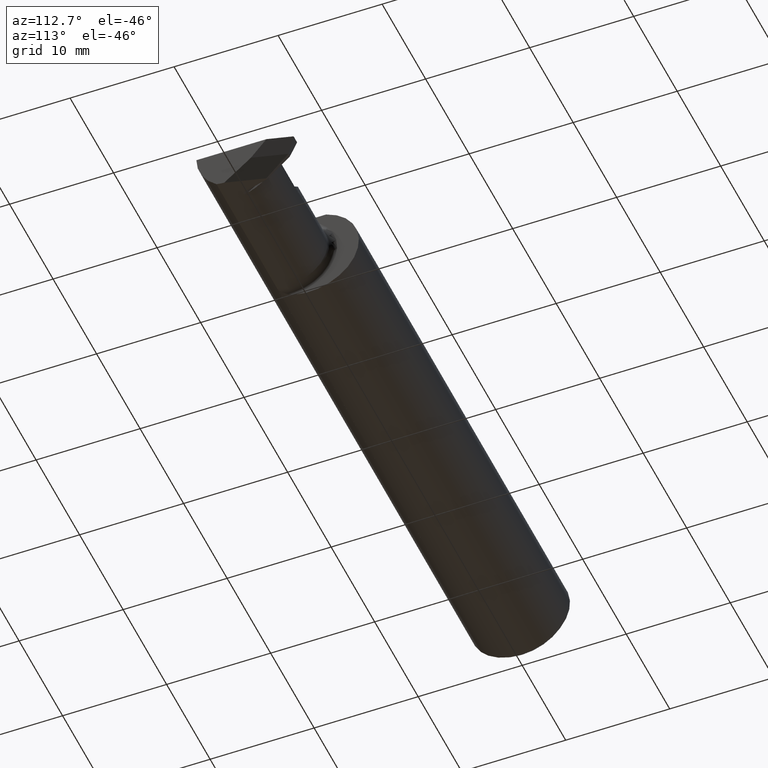
[diagram: clean part render]
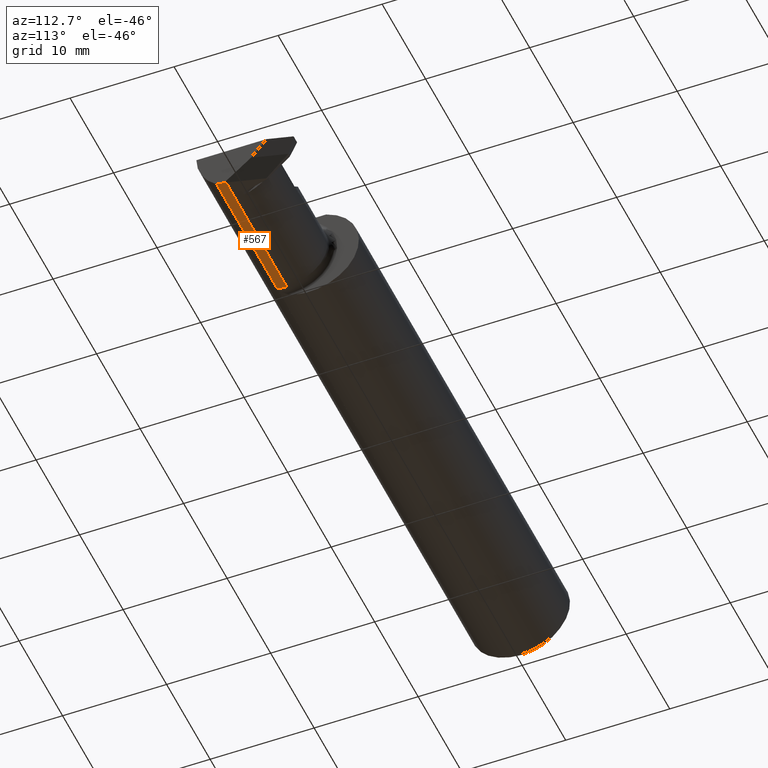
[diagram: same view with one face highlighted and labeled with its STEP entity id]
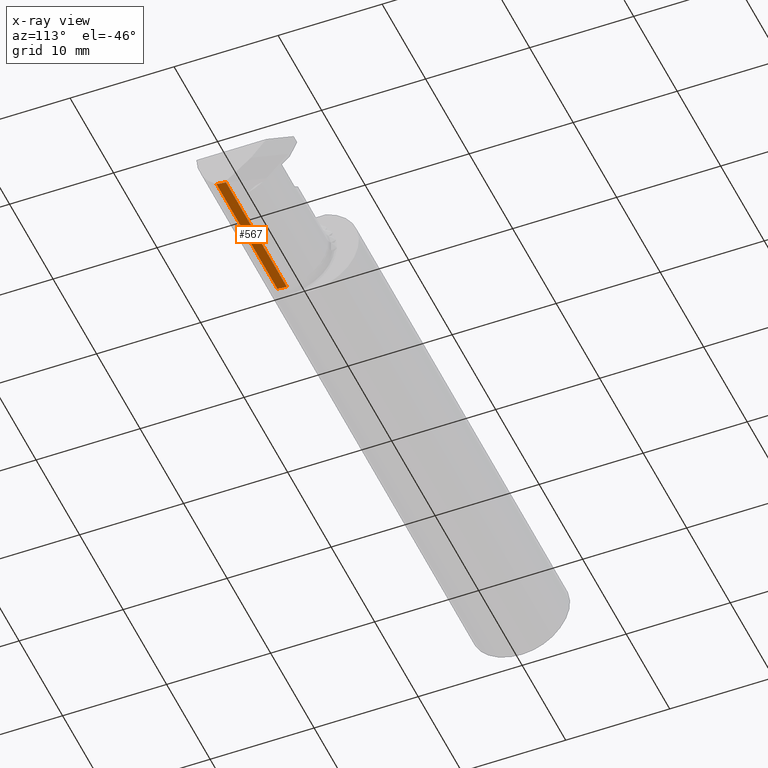
[diagram: x-ray of the same camera — body ghosted, the highlighted face saturated]
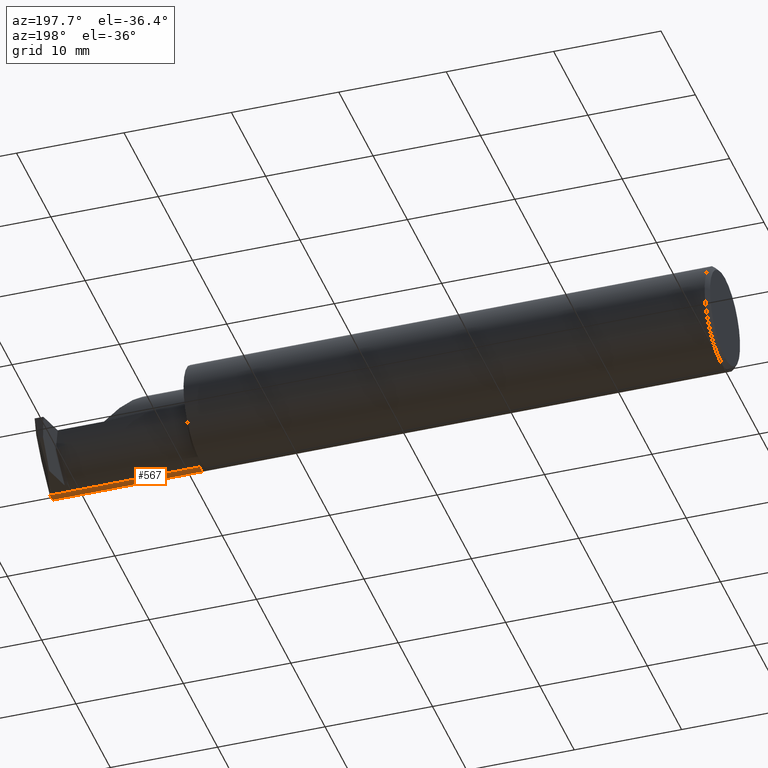
[diagram: same view with one face highlighted and labeled with its STEP entity id]
A machine part, auxiliary view. The second image highlights one B-rep face of the part: STEP entity #567.
The next image is the same camera in x-ray: the body ghosted, the highlighted face saturated — about 0% of this face is hidden behind the body in this view.
A second angle (auxiliary view) of the same face is appended — the face is thin or edge-on in the first view.
In plain terms, the highlighted cylindrical surface (partial cylindrical patch) has radius 3.937 mm, axis along (-1, -0, -0).
Its self-contained STEP definition (entity closure, byte-faithful):
#2 = VECTOR ( 'NONE', #434, 39.37007874015748143 ) ;
#13 = VERTEX_POINT ( 'NONE', #781 ) ;
#28 = ORIENTED_EDGE ( 'NONE', *, *, #172, .F. ) ;
#47 = CIRCLE ( 'NONE', #792, 0.1549999999999999434 ) ;
#93 = DIRECTION ( 'NONE',  ( -1.000000000000000000, -0.000000000000000000, -0.000000000000000000 ) ) ;
#102 = VERTEX_POINT ( 'NONE', #794 ) ;
#104 = DIRECTION ( 'NONE',  ( 1.000000000000000000, -0.000000000000000000, -0.000000000000000000 ) ) ;
#109 = CARTESIAN_POINT ( 'NONE',  ( 2.500000000000000000, -0.07535000000000005582, 0.000000000000000000 ) ) ;
#133 = EDGE_CURVE ( 'NONE', #13, #834, #716, .T. ) ;
#143 = DIRECTION ( 'NONE',  ( 1.000000000000000000, 0.000000000000000000, 0.000000000000000000 ) ) ;
#169 = AXIS2_PLACEMENT_3D ( 'NONE', #230, #860, #463 ) ;
#172 = EDGE_CURVE ( 'NONE', #202, #326, #47, .T. ) ;
#188 = VERTEX_POINT ( 'NONE', #949 ) ;
#202 = VERTEX_POINT ( 'NONE', #420 ) ;
#230 = CARTESIAN_POINT ( 'NONE',  ( 1.925000000000000266, -0.07535000000000005582, 0.000000000000000000 ) ) ;
#326 = VERTEX_POINT ( 'NONE', #895 ) ;
#332 = VECTOR ( 'NONE', #561, 39.37007874015748143 ) ;
#333 = CIRCLE ( 'NONE', #882, 0.1549999999999999989 ) ;
#353 = DIRECTION ( 'NONE',  ( 0.000000000000000000, 0.000000000000000000, 1.000000000000000000 ) ) ;
#360 = CARTESIAN_POINT ( 'NONE',  ( 1.950000000000000178, -0.07535000000000005582, 0.000000000000000000 ) ) ;
#372 = EDGE_CURVE ( 'NONE', #13, #326, #447, .T. ) ;
#386 = CARTESIAN_POINT ( 'NONE',  ( 1.925000000000000266, -0.07535000000000004194, -0.1549999999999999989 ) ) ;
#389 = ORIENTED_EDGE ( 'NONE', *, *, #585, .F. ) ;
#393 = VECTOR ( 'NONE', #93, 39.37007874015748143 ) ;
#405 = EDGE_LOOP ( 'NONE', ( #389, #494, #583, #28, #743, #609 ) ) ;
#420 = CARTESIAN_POINT ( 'NONE',  ( 2.500000000000000000, -0.1111655275381552010, -0.1508053314281814494 ) ) ;
#434 = DIRECTION ( 'NONE',  ( -1.000000000000000000, -0.000000000000000000, -0.000000000000000000 ) ) ;
#447 =( BOUNDED_CURVE ( )  B_SPLINE_CURVE ( 3, ( #530, #513, #690, #890 ),
 .UNSPECIFIED., .F., .F. ) 
 B_SPLINE_CURVE_WITH_KNOTS ( ( 4, 4 ),
 ( 0.6981317007977293487, 0.7409987552670027622 ),
 .UNSPECIFIED. ) 
 CURVE ( )  GEOMETRIC_REPRESENTATION_ITEM ( )  RATIONAL_B_SPLINE_CURVE ( ( 1.000000000000000000, 0.9998468738323588179, 0.9998468738323588179, 1.000000000000000000 ) ) 
 REPRESENTATION_ITEM ( '' )  );
#463 = DIRECTION ( 'NONE',  ( 0.000000000000000000, 0.000000000000000000, 1.000000000000000000 ) ) ;
#494 = ORIENTED_EDGE ( 'NONE', *, *, #133, .F. ) ;
#513 = CARTESIAN_POINT ( 'NONE',  ( 2.498811112660292988, -0.07756496740936917600, -0.1549999999999999989 ) ) ;
#515 = CARTESIAN_POINT ( 'NONE',  ( 2.172500000000000320, -0.1111655275381552427, -0.1508053314281814494 ) ) ;
#530 = CARTESIAN_POINT ( 'NONE',  ( 2.498238283139455174, -0.07535000000000000031, -0.1549999999999999156 ) ) ;
#561 = DIRECTION ( 'NONE',  ( -1.000000000000000000, -0.000000000000000000, -0.000000000000000000 ) ) ;
#567 = ADVANCED_FACE ( 'NONE', ( #645 ), #852, .T. ) ;
#583 = ORIENTED_EDGE ( 'NONE', *, *, #372, .T. ) ;
#585 = EDGE_CURVE ( 'NONE', #834, #102, #856, .T. ) ;
#609 = ORIENTED_EDGE ( 'NONE', *, *, #710, .T. ) ;
#645 = FACE_OUTER_BOUND ( 'NONE', #405, .T. ) ;
#686 = CARTESIAN_POINT ( 'NONE',  ( 2.419999999999999929, -0.07534999999999998643, -0.1549999999999999156 ) ) ;
#690 = CARTESIAN_POINT ( 'NONE',  ( 2.499398441549230299, -0.07977942606453211627, -0.1549525290705621450 ) ) ;
#699 = EDGE_CURVE ( 'NONE', #202, #188, #888, .T. ) ;
#710 = EDGE_CURVE ( 'NONE', #188, #102, #333, .T. ) ;
#716 = LINE ( 'NONE', #803, #332 ) ;
#743 = ORIENTED_EDGE ( 'NONE', *, *, #699, .T. ) ;
#745 = DIRECTION ( 'NONE',  ( 0.000000000000000000, 0.000000000000000000, -1.000000000000000000 ) ) ;
#781 = CARTESIAN_POINT ( 'NONE',  ( 2.498238283139455174, -0.07535000000000000031, -0.1549999999999999156 ) ) ;
#792 = AXIS2_PLACEMENT_3D ( 'NONE', #109, #104, #353 ) ;
#794 = CARTESIAN_POINT ( 'NONE',  ( 1.950000000000000178, -0.07535000000000004194, -0.1549999999999999989 ) ) ;
#803 = CARTESIAN_POINT ( 'NONE',  ( 2.500000000000000000, -0.07534999999999998643, -0.1549999999999999156 ) ) ;
#834 = VERTEX_POINT ( 'NONE', #686 ) ;
#852 = CYLINDRICAL_SURFACE ( 'NONE', #169, 0.1549999999999999989 ) ;
#856 = LINE ( 'NONE', #386, #393 ) ;
#860 = DIRECTION ( 'NONE',  ( -1.000000000000000000, -0.000000000000000000, -0.000000000000000000 ) ) ;
#882 = AXIS2_PLACEMENT_3D ( 'NONE', #360, #143, #745 ) ;
#888 = LINE ( 'NONE', #515, #2 ) ;
#890 = CARTESIAN_POINT ( 'NONE',  ( 2.500000000000000000, -0.08199235869078709549, -0.1548576090188109600 ) ) ;
#895 = CARTESIAN_POINT ( 'NONE',  ( 2.500000000000000000, -0.08199235869078709549, -0.1548576090188109600 ) ) ;
#949 = CARTESIAN_POINT ( 'NONE',  ( 1.950000000000000178, -0.1111655275381552427, -0.1508053314281814494 ) ) ;